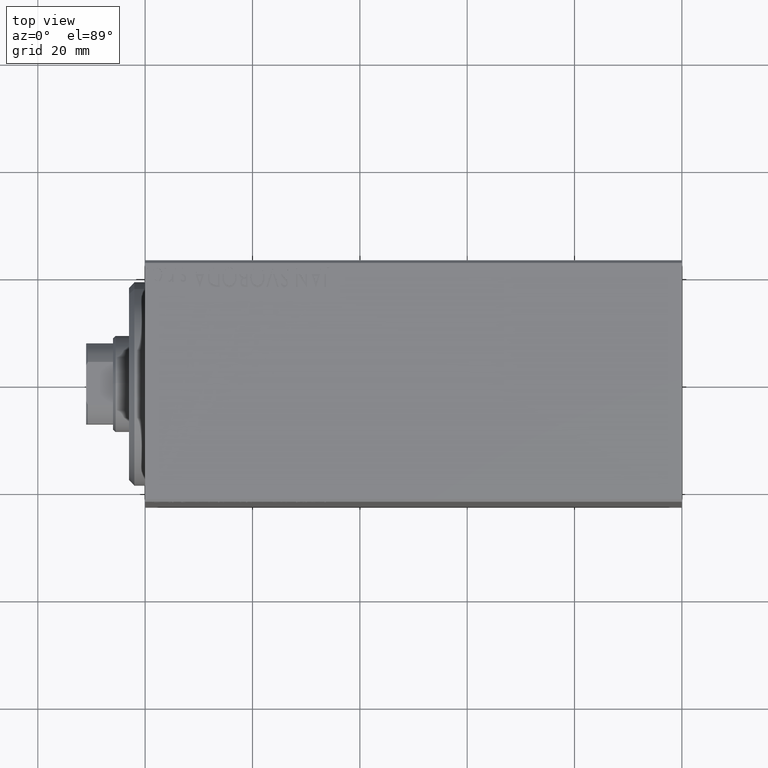
[diagram: clean part render]
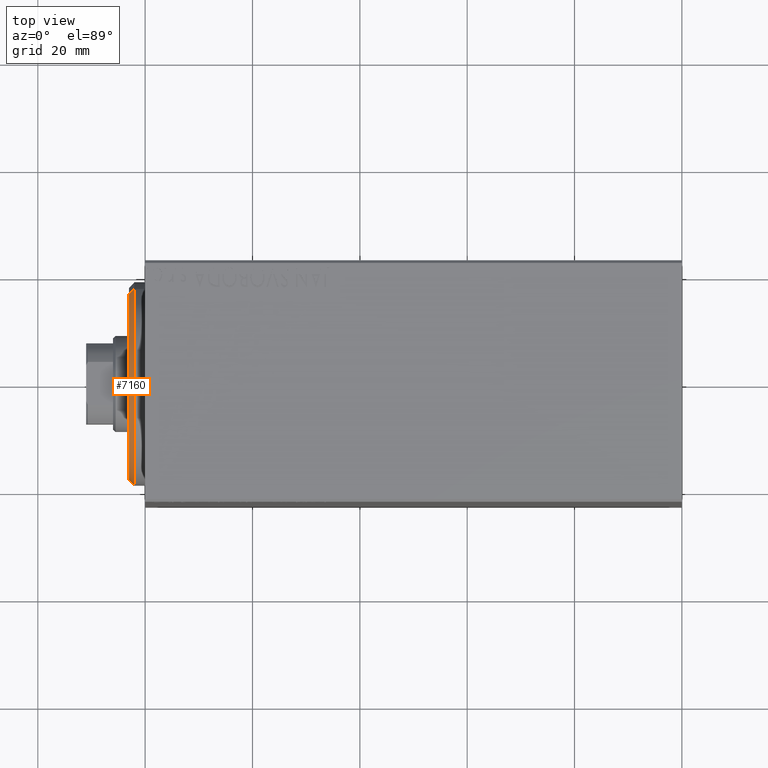
[diagram: same view with one face highlighted and labeled with its STEP entity id]
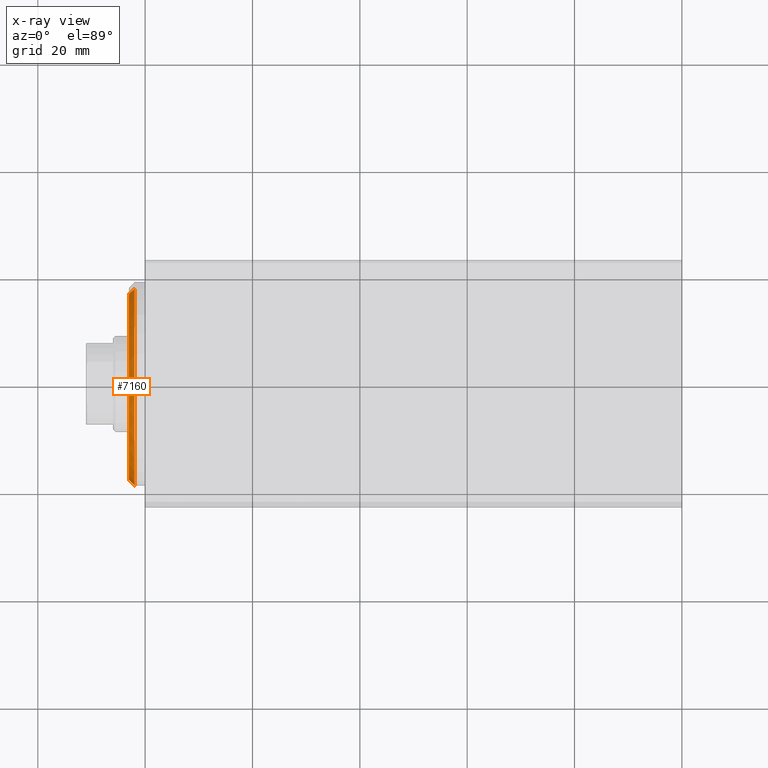
[diagram: x-ray of the same camera — body ghosted, the highlighted face saturated]
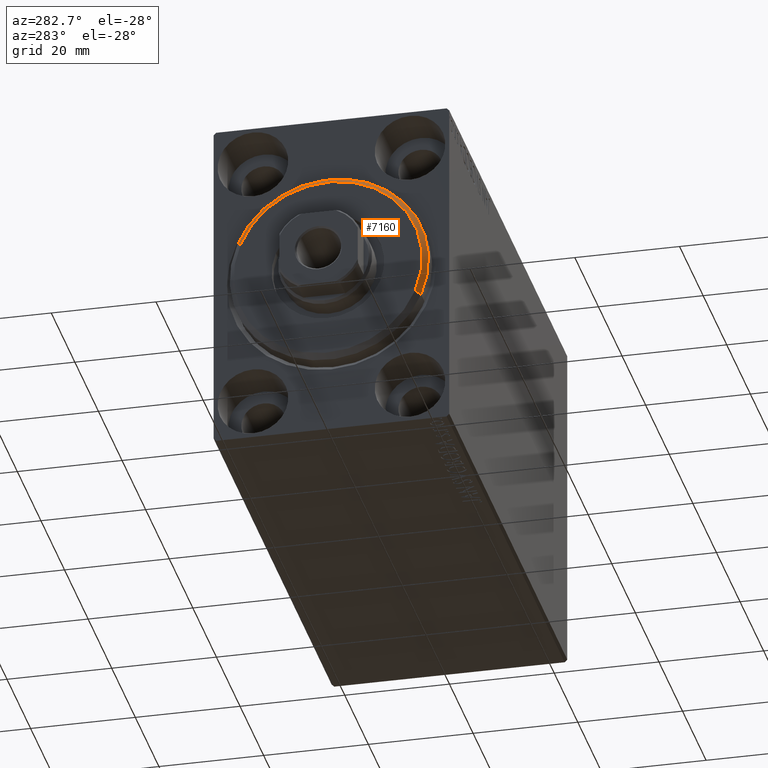
[diagram: same view with one face highlighted and labeled with its STEP entity id]
A machine part, top view. The second image highlights one B-rep face of the part: STEP entity #7160.
The next image is the same camera in x-ray: the body ghosted, the highlighted face saturated — about 0% of this face is hidden behind the body in this view.
A second angle (auxiliary view) of the same face is appended — the face is thin or edge-on in the first view.
In plain terms, the highlighted conical surface has half-angle 45 deg.
Its self-contained STEP definition (entity closure, byte-faithful):
#1513 = LINE ( 'NONE', #15447, #19747 ) ;
#2692 = CARTESIAN_POINT ( 'NONE',  ( 1.999999999999992228, 0.000000000000000000, 19.00000000000000000 ) ) ;
#3582 = DIRECTION ( 'NONE',  ( -1.000000000000000000, 0.000000000000000000, 0.000000000000000000 ) ) ;
#3806 = FACE_OUTER_BOUND ( 'NONE', #34821, .T. ) ;
#4363 = ORIENTED_EDGE ( 'NONE', *, *, #11234, .F. ) ;
#4429 = CONICAL_SURFACE ( 'NONE', #42640, 17.99999999999999645, 0.7853981633974466137 ) ;
#5978 = AXIS2_PLACEMENT_3D ( 'NONE', #28482, #15606, #25816 ) ;
#6403 = DIRECTION ( 'NONE',  ( -0.7071067811865487940, 0.000000000000000000, 0.7071067811865463515 ) ) ;
#7160 = ADVANCED_FACE ( 'NONE', ( #3806 ), #4429, .T. ) ;
#8583 = ORIENTED_EDGE ( 'NONE', *, *, #22077, .F. ) ;
#10126 = DIRECTION ( 'NONE',  ( 0.000000000000000000, 0.000000000000000000, -1.000000000000000000 ) ) ;
#11234 = EDGE_CURVE ( 'NONE', #36066, #18276, #1513, .T. ) ;
#11389 = CIRCLE ( 'NONE', #21301, 17.99999999999999645 ) ;
#11640 = CIRCLE ( 'NONE', #5978, 19.00000000000000000 ) ;
#12269 = VERTEX_POINT ( 'NONE', #17834 ) ;
#15447 = CARTESIAN_POINT ( 'NONE',  ( 3.000000000000000000, 2.204364238465235033E-15, -17.99999999999999645 ) ) ;
#15606 = DIRECTION ( 'NONE',  ( -1.000000000000000000, 0.000000000000000000, 0.000000000000000000 ) ) ;
#17108 = DIRECTION ( 'NONE',  ( 0.000000000000000000, 0.000000000000000000, 1.000000000000000000 ) ) ;
#17834 = CARTESIAN_POINT ( 'NONE',  ( 3.000000000000000000, 0.000000000000000000, 17.99999999999999645 ) ) ;
#18276 = VERTEX_POINT ( 'NONE', #32780 ) ;
#19747 = VECTOR ( 'NONE', #28969, 1000.000000000000000 ) ;
#21301 = AXIS2_PLACEMENT_3D ( 'NONE', #33166, #43794, #10126 ) ;
#22077 = EDGE_CURVE ( 'NONE', #12269, #36066, #11389, .T. ) ;
#25816 = DIRECTION ( 'NONE',  ( 0.000000000000000000, 0.000000000000000000, -1.000000000000000000 ) ) ;
#27083 = CARTESIAN_POINT ( 'NONE',  ( 3.000000000000000000, 0.000000000000000000, 0.000000000000000000 ) ) ;
#28482 = CARTESIAN_POINT ( 'NONE',  ( 1.999999999999992228, 0.000000000000000000, 0.000000000000000000 ) ) ;
#28969 = DIRECTION ( 'NONE',  ( -0.7071067811865487940, 8.659560562354918067E-17, -0.7071067811865463515 ) ) ;
#32780 = CARTESIAN_POINT ( 'NONE',  ( 1.999999999999992228, 2.326828918379970970E-15, -19.00000000000000000 ) ) ;
#33016 = ORIENTED_EDGE ( 'NONE', *, *, #39947, .T. ) ;
#33166 = CARTESIAN_POINT ( 'NONE',  ( 3.000000000000000000, 0.000000000000000000, 0.000000000000000000 ) ) ;
#33198 = CARTESIAN_POINT ( 'NONE',  ( 3.000000000000000000, 2.265596578422603002E-15, -17.99999999999999645 ) ) ;
#34821 = EDGE_LOOP ( 'NONE', ( #4363, #8583, #33016, #35047 ) ) ;
#35047 = ORIENTED_EDGE ( 'NONE', *, *, #36572, .F. ) ;
#35775 = VECTOR ( 'NONE', #6403, 1000.000000000000000 ) ;
#36066 = VERTEX_POINT ( 'NONE', #33198 ) ;
#36572 = EDGE_CURVE ( 'NONE', #18276, #40277, #11640, .T. ) ;
#39947 = EDGE_CURVE ( 'NONE', #12269, #40277, #40514, .T. ) ;
#40277 = VERTEX_POINT ( 'NONE', #2692 ) ;
#40514 = LINE ( 'NONE', #43617, #35775 ) ;
#42640 = AXIS2_PLACEMENT_3D ( 'NONE', #27083, #3582, #17108 ) ;
#43617 = CARTESIAN_POINT ( 'NONE',  ( 3.000000000000000000, 0.000000000000000000, 17.99999999999999645 ) ) ;
#43794 = DIRECTION ( 'NONE',  ( 1.000000000000000000, -0.000000000000000000, 0.000000000000000000 ) ) ;